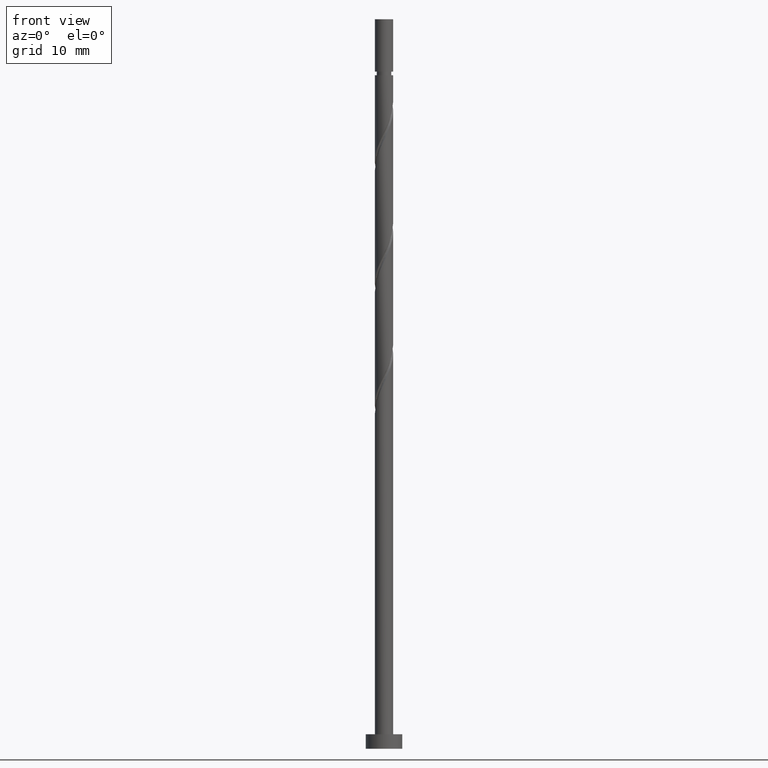
[diagram: clean part render]
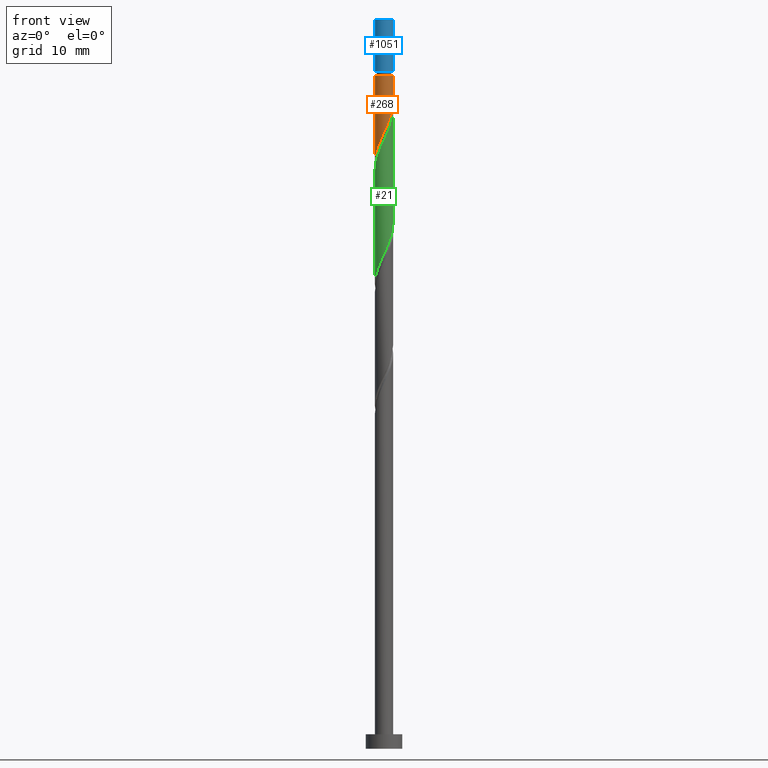
[diagram: same view with three faces highlighted in distinct colors, each labeled with its STEP entity id]
A machine part, front view with three faces highlighted in distinct colors.
Their STEP definitions:

[orange] entity #268 — the highlighted cylindrical surface (edge-blend (fillet) strip) has radius 1.25 mm, axis along (-0, -0, -1).
#4 = CARTESIAN_POINT ( 'NONE',  ( 1.250000000000000000, 1.530808498934191571E-16, 100.0000000000000000 ) ) ;
#10 = ORIENTED_EDGE ( 'NONE', *, *, #219, .T. ) ;
#43 = CIRCLE ( 'NONE', #528, 1.250000000000000666 ) ;
#72 = CARTESIAN_POINT ( 'NONE',  ( -0.6527202636798878910, -1.066047024001125942, 83.05171115089164857 ) ) ;
#80 = CARTESIAN_POINT ( 'NONE',  ( 1.163195058626191214, -0.4576868531950760710, 87.68134078052128189 ) ) ;
#166 = CARTESIAN_POINT ( 'NONE',  ( -1.249999999999999778, 2.638594966345117535E-15, 80.34182529847301169 ) ) ;
#173 = CARTESIAN_POINT ( 'NONE',  ( -1.250000000000000666, 0.000000000000000000, 92.31097041015092941 ) ) ;
#190 = CARTESIAN_POINT ( 'NONE',  ( -1.249999999999999556, 2.638594966345117535E-15, 80.34182529847301169 ) ) ;
#197 = CARTESIAN_POINT ( 'NONE',  ( -1.185254549274264768, -0.3970789007548236604, 81.19985929903978672 ) ) ;
#213 = DIRECTION ( 'NONE',  ( -0.000000000000000000, -0.000000000000000000, -1.000000000000000000 ) ) ;
#219 = EDGE_CURVE ( 'NONE', #1177, #1003, #811, .T. ) ;
#256 = CYLINDRICAL_SURFACE ( 'NONE', #398, 1.250000000000000000 ) ;
#268 = ADVANCED_FACE ( 'NONE', ( #1289 ), #256, .T. ) ;
#282 = DIRECTION ( 'NONE',  ( -0.000000000000000000, -0.000000000000000000, -1.000000000000000000 ) ) ;
#312 = CARTESIAN_POINT ( 'NONE',  ( 1.250000000000000222, 3.286572640316637225E-16, 88.67515863180634028 ) ) ;
#351 = CARTESIAN_POINT ( 'NONE',  ( 0.000000000000000000, 0.000000000000000000, 100.0000000000000000 ) ) ;
#367 = DIRECTION ( 'NONE',  ( -0.000000000000000000, -0.000000000000000000, -1.000000000000000000 ) ) ;
#398 = AXIS2_PLACEMENT_3D ( 'NONE', #351, #946, #1283 ) ;
#442 = ORIENTED_EDGE ( 'NONE', *, *, #1208, .F. ) ;
#468 = EDGE_LOOP ( 'NONE', ( #1448, #761, #10, #442 ) ) ;
#499 = CARTESIAN_POINT ( 'NONE',  ( 1.250000000000000222, 3.286572640316637225E-16, 88.67515863180634028 ) ) ;
#528 = AXIS2_PLACEMENT_3D ( 'NONE', #971, #282, #659 ) ;
#628 = EDGE_CURVE ( 'NONE', #695, #1177, #43, .T. ) ;
#639 = CARTESIAN_POINT ( 'NONE',  ( 0.4032044828447866602, -1.203539011191733010, 85.36652596570651497 ) ) ;
#647 = CARTESIAN_POINT ( 'NONE',  ( 0.5968636725738306614, -1.098295841912223070, 85.82948892866944846 ) ) ;
#659 = DIRECTION ( 'NONE',  ( -1.000000000000000000, 0.000000000000000000, 0.000000000000000000 ) ) ;
#681 = LINE ( 'NONE', #4, #982 ) ;
#695 = VERTEX_POINT ( 'NONE', #1161 ) ;
#759 = CARTESIAN_POINT ( 'NONE',  ( 0.7905228623028744961, -0.9930526726327140175, 86.29245189163243879 ) ) ;
#761 = ORIENTED_EDGE ( 'NONE', *, *, #628, .T. ) ;
#777 = CARTESIAN_POINT ( 'NONE',  ( 1.250000000000000444, -0.01612709291502988432, 88.64114125787399701 ) ) ;
#806 = EDGE_CURVE ( 'NONE', #695, #899, #681, .T. ) ;
#811 = LINE ( 'NONE', #1270, #1214 ) ;
#867 = CARTESIAN_POINT ( 'NONE',  ( 0.1852290874680007082, -1.236199896924349062, 84.90356300274349621 ) ) ;
#875 = CARTESIAN_POINT ( 'NONE',  ( 1.082492517692345002, -0.6627895258576392834, 87.21837781755834840 ) ) ;
#883 = CARTESIAN_POINT ( 'NONE',  ( -1.115238825601130745, -0.6060712567993279398, 81.66282226200279126 ) ) ;
#899 = VERTEX_POINT ( 'NONE', #499 ) ;
#946 = DIRECTION ( 'NONE',  ( -0.000000000000000000, -0.000000000000000000, -1.000000000000000000 ) ) ;
#971 = CARTESIAN_POINT ( 'NONE',  ( 0.000000000000000000, 0.000000000000000000, 92.31097041015092941 ) ) ;
#982 = VECTOR ( 'NONE', #213, 1000.000000000000000 ) ;
#1002 = CARTESIAN_POINT ( 'NONE',  ( 0.9365076899976095826, -0.8279210992451763174, 86.75541485459535807 ) ) ;
#1003 = VERTEX_POINT ( 'NONE', #166 ) ;
#1009 = CARTESIAN_POINT ( 'NONE',  ( 1.243897599560038314, -0.2525841805325141909, 88.14430374348431485 ) ) ;
#1017 = CARTESIAN_POINT ( 'NONE',  ( 1.249583936253718663, -0.03224881791109725920, 88.60726670644720571 ) ) ;
#1093 = CARTESIAN_POINT ( 'NONE',  ( -0.2487468592766550746, -1.224999999999999867, 83.97763707681760081 ) ) ;
#1105 = CARTESIAN_POINT ( 'NONE',  ( -0.4647474106445250719, -1.181139217343034176, 83.51467411385463890 ) ) ;
#1148 =( BOUNDED_CURVE ( )  B_SPLINE_CURVE ( 2, ( #312, #777, #1017, #1009, #80, #875, #1002, #759, #647, #639, #867, #1463, #1093, #1105, #72, #1446, #1237, #883, #197, #1229, #190 ),
 .UNSPECIFIED., .F., .T. ) 
 B_SPLINE_CURVE_WITH_KNOTS ( ( 3, 2, 2, 2, 2, 2, 2, 2, 2, 2, 3 ),
 ( 0.3045248053855292847, 0.3055555555555555802, 0.3194444444444444198, 0.3333333333333333148, 0.3472222222222222099, 0.3611111111111111049, 0.3750000000000000000, 0.3888888888888888951, 0.4027777777777777901, 0.4166666666666666852, 0.4295248053855294512 ),
 .UNSPECIFIED. ) 
 CURVE ( )  GEOMETRIC_REPRESENTATION_ITEM ( )  RATIONAL_B_SPLINE_CURVE ( ( 0.9071930855141200345, 0.9080659294509675350, 0.9090909090909075063, 0.8952797754656419693, 0.9090909090909075063, 0.8952797754656419693, 0.9090909090909075063, 0.8952797754656419693, 0.9090909090909075063, 0.8952797754656419693, 0.9090909090909075063, 0.8952797754656419693, 0.9090909090909075063, 0.8952797754656419693, 0.9090909090909075063, 0.8952797754656419693, 0.9090909090909075063, 0.8952797754656419693, 0.9090909090909075063, 0.8963047551055816076, 0.9071930855141204786 ) ) 
 REPRESENTATION_ITEM ( '' )  );
#1161 = CARTESIAN_POINT ( 'NONE',  ( 1.250000000000000666, 1.530808498934192310E-16, 92.31097041015092941 ) ) ;
#1177 = VERTEX_POINT ( 'NONE', #173 ) ;
#1208 = EDGE_CURVE ( 'NONE', #899, #1003, #1148, .T. ) ;
#1214 = VECTOR ( 'NONE', #367, 1000.000000000000000 ) ;
#1229 = CARTESIAN_POINT ( 'NONE',  ( -1.250000000000001776, -0.2038179647755651580, 80.77174481083864066 ) ) ;
#1237 = CARTESIAN_POINT ( 'NONE',  ( -0.9779659711581906167, -0.7785130437292729910, 82.12578522496571054 ) ) ;
#1270 = CARTESIAN_POINT ( 'NONE',  ( -1.250000000000000000, 0.000000000000000000, 100.0000000000000000 ) ) ;
#1283 = DIRECTION ( 'NONE',  ( -1.000000000000000000, 0.000000000000000000, 0.000000000000000000 ) ) ;
#1289 = FACE_OUTER_BOUND ( 'NONE', #468, .T. ) ;
#1446 = CARTESIAN_POINT ( 'NONE',  ( -0.8406931167152508211, -0.9509548306592188194, 82.58874818792871508 ) ) ;
#1448 = ORIENTED_EDGE ( 'NONE', *, *, #806, .F. ) ;
#1463 = CARTESIAN_POINT ( 'NONE',  ( -0.03274630790878577807, -1.268860782656966890, 84.44060003978056272 ) ) ;

[blue] entity #1051 — the highlighted cylindrical surface (edge-blend (fillet) strip) has radius 1.25 mm, axis along (-0, -0, -1).
#89 = DIRECTION ( 'NONE',  ( -0.000000000000000000, -0.000000000000000000, -1.000000000000000000 ) ) ;
#94 = VECTOR ( 'NONE', #1284, 1000.000000000000000 ) ;
#96 = EDGE_CURVE ( 'NONE', #1279, #631, #459, .T. ) ;
#125 = DIRECTION ( 'NONE',  ( 0.000000000000000000, 0.000000000000000000, 1.000000000000000000 ) ) ;
#160 = CARTESIAN_POINT ( 'NONE',  ( 1.250000000000000000, 1.530808498934191571E-16, 100.0000000000000000 ) ) ;
#167 = EDGE_LOOP ( 'NONE', ( #923, #1147, #970, #820 ) ) ;
#223 = EDGE_CURVE ( 'NONE', #1279, #417, #1264, .T. ) ;
#226 = CARTESIAN_POINT ( 'NONE',  ( 1.250000000000000666, 1.530808498934192310E-16, 92.81097041015092941 ) ) ;
#247 = DIRECTION ( 'NONE',  ( 1.000000000000000000, 0.000000000000000000, 0.000000000000000000 ) ) ;
#254 = CIRCLE ( 'NONE', #374, 1.250000000000000666 ) ;
#264 = FACE_OUTER_BOUND ( 'NONE', #167, .T. ) ;
#273 = CARTESIAN_POINT ( 'NONE',  ( 0.000000000000000000, 0.000000000000000000, 100.0000000000000000 ) ) ;
#334 = CARTESIAN_POINT ( 'NONE',  ( -1.250000000000000000, 0.000000000000000000, 100.0000000000000000 ) ) ;
#374 = AXIS2_PLACEMENT_3D ( 'NONE', #882, #646, #1328 ) ;
#390 = CYLINDRICAL_SURFACE ( 'NONE', #1318, 1.250000000000000000 ) ;
#417 = VERTEX_POINT ( 'NONE', #1080 ) ;
#459 = LINE ( 'NONE', #334, #1184 ) ;
#467 = EDGE_CURVE ( 'NONE', #1391, #631, #254, .T. ) ;
#490 = DIRECTION ( 'NONE',  ( -0.000000000000000000, -0.000000000000000000, -1.000000000000000000 ) ) ;
#540 = AXIS2_PLACEMENT_3D ( 'NONE', #1167, #125, #247 ) ;
#623 = LINE ( 'NONE', #160, #94 ) ;
#631 = VERTEX_POINT ( 'NONE', #1108 ) ;
#646 = DIRECTION ( 'NONE',  ( -0.000000000000000000, -0.000000000000000000, -1.000000000000000000 ) ) ;
#820 = ORIENTED_EDGE ( 'NONE', *, *, #467, .F. ) ;
#882 = CARTESIAN_POINT ( 'NONE',  ( 0.000000000000000000, 0.000000000000000000, 92.81097041015092941 ) ) ;
#923 = ORIENTED_EDGE ( 'NONE', *, *, #1010, .F. ) ;
#954 = DIRECTION ( 'NONE',  ( -1.000000000000000000, 0.000000000000000000, 0.000000000000000000 ) ) ;
#970 = ORIENTED_EDGE ( 'NONE', *, *, #96, .T. ) ;
#1010 = EDGE_CURVE ( 'NONE', #417, #1391, #623, .T. ) ;
#1051 = ADVANCED_FACE ( 'NONE', ( #264 ), #390, .T. ) ;
#1080 = CARTESIAN_POINT ( 'NONE',  ( 1.250000000000000000, 1.530808498934191571E-16, 100.0000000000000000 ) ) ;
#1108 = CARTESIAN_POINT ( 'NONE',  ( -1.250000000000000666, 0.000000000000000000, 92.81097041015092941 ) ) ;
#1137 = CARTESIAN_POINT ( 'NONE',  ( -1.250000000000000000, 0.000000000000000000, 100.0000000000000000 ) ) ;
#1147 = ORIENTED_EDGE ( 'NONE', *, *, #223, .F. ) ;
#1167 = CARTESIAN_POINT ( 'NONE',  ( 0.000000000000000000, 0.000000000000000000, 100.0000000000000000 ) ) ;
#1184 = VECTOR ( 'NONE', #89, 1000.000000000000000 ) ;
#1264 = CIRCLE ( 'NONE', #540, 1.250000000000000000 ) ;
#1279 = VERTEX_POINT ( 'NONE', #1137 ) ;
#1284 = DIRECTION ( 'NONE',  ( -0.000000000000000000, -0.000000000000000000, -1.000000000000000000 ) ) ;
#1318 = AXIS2_PLACEMENT_3D ( 'NONE', #273, #490, #954 ) ;
#1328 = DIRECTION ( 'NONE',  ( -1.000000000000000000, 0.000000000000000000, 0.000000000000000000 ) ) ;
#1391 = VERTEX_POINT ( 'NONE', #226 ) ;

[green] entity #21 — the highlighted cylindrical surface (edge-blend (fillet) strip) has radius 1.25 mm, axis along (-0, -0, -1).
#2 = EDGE_CURVE ( 'NONE', #680, #813, #325, .T. ) ;
#21 = ADVANCED_FACE ( 'NONE', ( #447 ), #227, .T. ) ;
#56 = AXIS2_PLACEMENT_3D ( 'NONE', #693, #205, #1360 ) ;
#88 = CARTESIAN_POINT ( 'NONE',  ( -0.4647474106445250719, -1.181139217343034176, 66.84800744718796750 ) ) ;
#103 = LINE ( 'NONE', #939, #1011 ) ;
#126 = CARTESIAN_POINT ( 'NONE',  ( -1.250000000000001776, -5.751502120554076071E-16, 79.28011552182887556 ) ) ;
#176 = CARTESIAN_POINT ( 'NONE',  ( 0.2487468592766550191, -1.225000000000002309, 83.97763707681762924 ) ) ;
#200 = CARTESIAN_POINT ( 'NONE',  ( 1.250000000000001332, -0.2038179647755741231, 87.18352934279651834 ) ) ;
#205 = DIRECTION ( 'NONE',  ( -0.000000000000000000, -0.000000000000000000, -1.000000000000000000 ) ) ;
#227 = CYLINDRICAL_SURFACE ( 'NONE', #56, 1.250000000000000000 ) ;
#290 = CARTESIAN_POINT ( 'NONE',  ( 1.250000000000001776, 5.770175828737692961E-16, 87.61344885516218994 ) ) ;
#295 = CARTESIAN_POINT ( 'NONE',  ( 0.5968636725738306614, -1.098295841912223070, 69.16282226200277705 ) ) ;
#303 = CARTESIAN_POINT ( 'NONE',  ( -1.185254549274264768, -0.3970789007548236604, 64.53319263237315795 ) ) ;
#315 = CARTESIAN_POINT ( 'NONE',  ( 0.6527202636798884461, -1.066047024001128607, 84.90356300274356727 ) ) ;
#320 = CARTESIAN_POINT ( 'NONE',  ( -1.115238825601130745, -0.6060712567993279398, 64.99615559533614828 ) ) ;
#325 = LINE ( 'NONE', #793, #413 ) ;
#352 = DIRECTION ( 'NONE',  ( -0.000000000000000000, -0.000000000000000000, -1.000000000000000000 ) ) ;
#408 = EDGE_LOOP ( 'NONE', ( #940, #1456, #994, #1221 ) ) ;
#413 = VECTOR ( 'NONE', #1023, 1000.000000000000000 ) ;
#416 = CARTESIAN_POINT ( 'NONE',  ( 1.243897599560038314, -0.2525841805325141909, 71.47763707681757239 ) ) ;
#419 = CARTESIAN_POINT ( 'NONE',  ( -0.7905228623028761614, -0.9930526726327152387, 81.66282226200277705 ) ) ;
#423 = CARTESIAN_POINT ( 'NONE',  ( -1.250000000000001776, -0.01612709291503078984, 79.31413289576121883 ) ) ;
#434 = CARTESIAN_POINT ( 'NONE',  ( -0.6527202636798878910, -1.066047024001125942, 66.38504448422497717 ) ) ;
#447 = FACE_OUTER_BOUND ( 'NONE', #408, .T. ) ;
#509 = EDGE_CURVE ( 'NONE', #680, #593, #1062, .T. ) ;
#524 = CARTESIAN_POINT ( 'NONE',  ( 0.4032044828447866602, -1.203539011191733010, 68.69985929903981514 ) ) ;
#537 = CARTESIAN_POINT ( 'NONE',  ( -0.9365076899976116920, -0.8279210992451770945, 81.19985929903982935 ) ) ;
#542 = CARTESIAN_POINT ( 'NONE',  ( -1.250000000000001998, -5.751502120554076071E-16, 79.28011552182887556 ) ) ;
#543 = CARTESIAN_POINT ( 'NONE',  ( -0.2487468592766550746, -1.224999999999999867, 67.31097041015092941 ) ) ;
#587 = VERTEX_POINT ( 'NONE', #1316 ) ;
#593 = VERTEX_POINT ( 'NONE', #290 ) ;
#642 = CARTESIAN_POINT ( 'NONE',  ( -0.1852290874680015964, -1.236199896924351282, 83.05171115089169120 ) ) ;
#651 = CARTESIAN_POINT ( 'NONE',  ( 1.250000000000001776, 5.770175828737692961E-16, 87.61344885516218994 ) ) ;
#680 = VERTEX_POINT ( 'NONE', #126 ) ;
#690 = EDGE_CURVE ( 'NONE', #593, #587, #103, .T. ) ;
#693 = CARTESIAN_POINT ( 'NONE',  ( 0.000000000000000000, 0.000000000000000000, 100.0000000000000000 ) ) ;
#752 = CARTESIAN_POINT ( 'NONE',  ( 1.250000000000000222, -0.01612709291502473913, 71.97447459120731139 ) ) ;
#763 = CARTESIAN_POINT ( 'NONE',  ( 0.03274630790878472336, -1.268860782656968000, 83.51467411385462469 ) ) ;
#785 = CARTESIAN_POINT ( 'NONE',  ( 1.250000000000000444, 1.923391942912577386E-16, 72.00849196513968309 ) ) ;
#793 = CARTESIAN_POINT ( 'NONE',  ( -1.250000000000000000, 0.000000000000000000, 100.0000000000000000 ) ) ;
#813 = VERTEX_POINT ( 'NONE', #819 ) ;
#819 = CARTESIAN_POINT ( 'NONE',  ( -1.250000000000000000, 2.774913036085523691E-15, 63.67515863180634028 ) ) ;
#845 =( BOUNDED_CURVE ( )  B_SPLINE_CURVE ( 2, ( #785, #752, #898, #416, #1127, #1218, #1322, #1455, #295, #524, #1113, #1121, #543, #88, #434, #1354, #992, #320, #303, #890, #1210 ),
 .UNSPECIFIED., .F., .T. ) 
 B_SPLINE_CURVE_WITH_KNOTS ( ( 3, 2, 2, 2, 2, 2, 2, 2, 2, 2, 3 ),
 ( 0.5545248053855289516, 0.5555555555555555802, 0.5694444444444444198, 0.5833333333333333703, 0.5972222222222222099, 0.6111111111111111605, 0.6250000000000000000, 0.6388888888888888395, 0.6527777777777777901, 0.6666666666666666297, 0.6795248053855290626 ),
 .UNSPECIFIED. ) 
 CURVE ( )  GEOMETRIC_REPRESENTATION_ITEM ( )  RATIONAL_B_SPLINE_CURVE ( ( 0.9071930855141195904, 0.9080659294509673130, 0.9090909090909075063, 0.8952797754656419693, 0.9090909090909075063, 0.8952797754656419693, 0.9090909090909075063, 0.8952797754656419693, 0.9090909090909075063, 0.8952797754656419693, 0.9090909090909075063, 0.8952797754656419693, 0.9090909090909075063, 0.8952797754656419693, 0.9090909090909075063, 0.8952797754656419693, 0.9090909090909075063, 0.8952797754656419693, 0.9090909090909075063, 0.8963047551055820517, 0.9071930855141197014 ) ) 
 REPRESENTATION_ITEM ( '' )  );
#878 = CARTESIAN_POINT ( 'NONE',  ( -0.4032044828447876039, -1.203539011191734343, 82.58874818792871508 ) ) ;
#886 = CARTESIAN_POINT ( 'NONE',  ( -0.5968636725738321047, -1.098295841912225068, 82.12578522496575317 ) ) ;
#890 = CARTESIAN_POINT ( 'NONE',  ( -1.250000000000000000, -0.2038179647755710144, 64.10507814417195505 ) ) ;
#894 = CARTESIAN_POINT ( 'NONE',  ( -1.163195058626193656, -0.4576868531950767371, 80.27393337311390553 ) ) ;
#898 = CARTESIAN_POINT ( 'NONE',  ( 1.249583936253718663, -0.03224881791109725920, 71.94060003978053430 ) ) ;
#939 = CARTESIAN_POINT ( 'NONE',  ( 1.250000000000000000, 1.530808498934191571E-16, 100.0000000000000000 ) ) ;
#940 = ORIENTED_EDGE ( 'NONE', *, *, #690, .F. ) ;
#987 = CARTESIAN_POINT ( 'NONE',  ( 0.4647474106445247388, -1.181139217343036174, 84.44060003978057694 ) ) ;
#992 = CARTESIAN_POINT ( 'NONE',  ( -0.9779659711581906167, -0.7785130437292729910, 65.45911855829906756 ) ) ;
#994 = ORIENTED_EDGE ( 'NONE', *, *, #2, .T. ) ;
#1001 = CARTESIAN_POINT ( 'NONE',  ( -1.249583936253720218, -0.03224881791109653756, 79.34800744718798171 ) ) ;
#1011 = VECTOR ( 'NONE', #352, 1000.000000000000000 ) ;
#1023 = DIRECTION ( 'NONE',  ( -0.000000000000000000, -0.000000000000000000, -1.000000000000000000 ) ) ;
#1062 =( BOUNDED_CURVE ( )  B_SPLINE_CURVE ( 2, ( #542, #423, #1001, #1346, #894, #1332, #537, #419, #886, #878, #642, #763, #176, #987, #315, #1458, #1097, #1240, #1088, #200, #651 ),
 .UNSPECIFIED., .F., .T. ) 
 B_SPLINE_CURVE_WITH_KNOTS ( ( 3, 2, 2, 2, 2, 2, 2, 2, 2, 2, 3 ),
 ( 0.5545248053855293957, 0.5555555555555555802, 0.5694444444444444198, 0.5833333333333332593, 0.5972222222222222099, 0.6111111111111111605, 0.6250000000000000000, 0.6388888888888888395, 0.6527777777777777901, 0.6666666666666667407, 0.6795248053855289516 ),
 .UNSPECIFIED. ) 
 CURVE ( )  GEOMETRIC_REPRESENTATION_ITEM ( )  RATIONAL_B_SPLINE_CURVE ( ( 0.9071930855141262517, 0.9080659294509737522, 0.9090909090909135015, 0.8952797754656481866, 0.9090909090909135015, 0.8952797754656481866, 0.9090909090909135015, 0.8952797754656481866, 0.9090909090909135015, 0.8952797754656481866, 0.9090909090909135015, 0.8952797754656481866, 0.9090909090909135015, 0.8952797754656481866, 0.9090909090909135015, 0.8952797754656481866, 0.9090909090909135015, 0.8952797754656481866, 0.9090909090909135015, 0.8963047551055883799, 0.9071930855141255856 ) ) 
 REPRESENTATION_ITEM ( '' )  );
#1070 = EDGE_CURVE ( 'NONE', #587, #813, #845, .T. ) ;
#1088 = CARTESIAN_POINT ( 'NONE',  ( 1.185254549274266767, -0.3970789007548254923, 86.75541485459540070 ) ) ;
#1097 = CARTESIAN_POINT ( 'NONE',  ( 0.9779659711581923931, -0.7785130437292746564, 85.82948892866949109 ) ) ;
#1113 = CARTESIAN_POINT ( 'NONE',  ( 0.1852290874680007082, -1.236199896924349062, 68.23689633607685323 ) ) ;
#1121 = CARTESIAN_POINT ( 'NONE',  ( -0.03274630790878577807, -1.268860782656966890, 67.77393337311387711 ) ) ;
#1127 = CARTESIAN_POINT ( 'NONE',  ( 1.163195058626191214, -0.4576868531950760710, 71.01467411385463890 ) ) ;
#1210 = CARTESIAN_POINT ( 'NONE',  ( -1.250000000000000222, 2.774913036085524086E-15, 63.67515863180634028 ) ) ;
#1218 = CARTESIAN_POINT ( 'NONE',  ( 1.082492517692345002, -0.6627895258576392834, 70.55171115089167699 ) ) ;
#1221 = ORIENTED_EDGE ( 'NONE', *, *, #1070, .F. ) ;
#1240 = CARTESIAN_POINT ( 'NONE',  ( 1.115238825601131856, -0.6060712567993289390, 86.29245189163241037 ) ) ;
#1316 = CARTESIAN_POINT ( 'NONE',  ( 1.250000000000000444, 1.923391942912577386E-16, 72.00849196513966888 ) ) ;
#1322 = CARTESIAN_POINT ( 'NONE',  ( 0.9365076899976095826, -0.8279210992451763174, 70.08874818792870087 ) ) ;
#1332 = CARTESIAN_POINT ( 'NONE',  ( -1.082492517692347000, -0.6627895258576391724, 80.73689633607688165 ) ) ;
#1346 = CARTESIAN_POINT ( 'NONE',  ( -1.243897599560039868, -0.2525841805325140799, 79.81097041015092941 ) ) ;
#1354 = CARTESIAN_POINT ( 'NONE',  ( -0.8406931167152508211, -0.9509548306592188194, 65.92208152126204368 ) ) ;
#1360 = DIRECTION ( 'NONE',  ( -1.000000000000000000, 0.000000000000000000, 0.000000000000000000 ) ) ;
#1455 = CARTESIAN_POINT ( 'NONE',  ( 0.7905228623028744961, -0.9930526726327140175, 69.62578522496573896 ) ) ;
#1456 = ORIENTED_EDGE ( 'NONE', *, *, #509, .F. ) ;
#1458 = CARTESIAN_POINT ( 'NONE',  ( 0.8406931167152515982, -0.9509548306592204847, 85.36652596570648655 ) ) ;